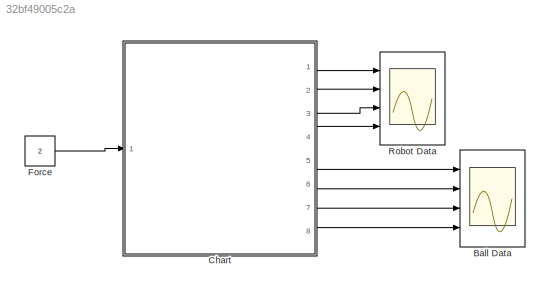
MODEL slx_32bf49005c2a
KIND model
CONFIG AbsTol = auto
CONFIG EnableMultiTasking = off
CONFIG FixedStep = 0.1
CONFIG MaxStep = auto
CONFIG MinStep = auto
CONFIG RelTol = 1e-3
CONFIG SampleTimeConstraint = Unconstrained
CONFIG Solver = FixedStepAuto
CONFIG SolverName = FixedStepAuto
CONFIG StartTime = 0.0
CONFIG StopTime = 10
BLOCK [Scope] Ball Data
  Floating = off
  NumInputPorts = 4
  Ports = [4]
  ScopeSpecificationString = Simulink.scopes.TimeScopeBlockCfg('CurrentConfiguration', extmgr.ConfigurationSet(extmgr.Configuration('Core','General UI',true),extmgr.Configuration('Core','Source UI',true),extmgr.Configuration('Sources','WiredSimulink',true,'DataLoggingVariableName','ScopeData1'),extmgr.Configuration('Visuals','Time Domain',true,'SerializedDisplays',{struct('MinYLimReal','-18.75771','MaxYLimReal','21.66937','YL...<+1494ch>
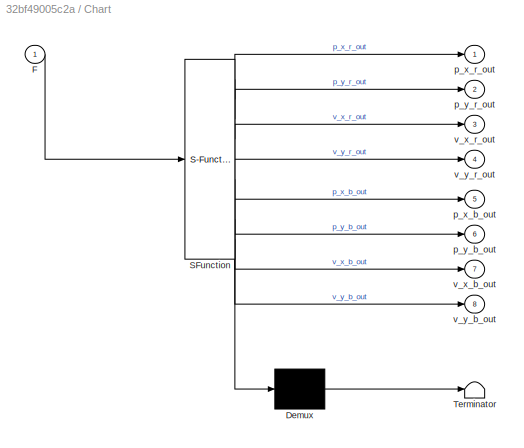
BLOCK [SubSystem] Chart
  ErrorFcn = Stateflow.Translate.translate
  PermitHierarchicalResolution = ExplicitOnly
  Ports = [1, 8]
  RequestExecContextInheritance = off
  SFBlockType = Chart
  TreatAsAtomicUnit = on
BLOCK [Demux] Chart/ Demux 
  Outputs = 1
  Ports = [1, 1]
BLOCK [S-Function] Chart/ SFunction 
  EnableBusSupport = on
  FunctionName = sf_sfun
  PortCounts = [1 9]
  Ports = [1, 9]
  SFcnIsStateOwnerBlock = off
  SFunctionDeploymentMode = off
  Tag = Stateflow S-Function A4a 3
BLOCK [Terminator] Chart/ Terminator 
BLOCK [Inport] Chart/F
  IconDisplay = Port number
BLOCK [Outport] Chart/p_x_b_out
  IconDisplay = Port number
  Port = 5
BLOCK [Outport] Chart/p_x_r_out
  IconDisplay = Port number
BLOCK [Outport] Chart/p_y_b_out
  IconDisplay = Port number
  Port = 6
BLOCK [Outport] Chart/p_y_r_out
  IconDisplay = Port number
  Port = 2
BLOCK [Outport] Chart/v_x_b_out
  IconDisplay = Port number
  Port = 7
BLOCK [Outport] Chart/v_x_r_out
  IconDisplay = Port number
  Port = 3
BLOCK [Outport] Chart/v_y_b_out
  IconDisplay = Port number
  Port = 8
BLOCK [Outport] Chart/v_y_r_out
  IconDisplay = Port number
  Port = 4
BLOCK [Constant] Force
  Value = 2
BLOCK [Scope] Robot Data
  Floating = off
  NumInputPorts = 4
  Ports = [4]
  ScopeSpecificationString = Simulink.scopes.TimeScopeBlockCfg('CurrentConfiguration', extmgr.ConfigurationSet(extmgr.Configuration('Core','General UI',true),extmgr.Configuration('Core','Source UI',true),extmgr.Configuration('Sources','WiredSimulink',true),extmgr.Configuration('Visuals','Time Domain',true,'SerializedDisplays',{struct('MinYLimReal','-20.24854','MaxYLimReal','35.08688','YLabelReal','','MinYLimMag','0.00000','Ma...<+1455ch>
LINE Chart:1 -> Robot Data:1
LINE Chart:2 -> Robot Data:2
LINE Chart:3 -> Robot Data:3
LINE Chart:4 -> Robot Data:4
LINE Chart:5 -> Ball Data:1
LINE Chart:6 -> Ball Data:2
LINE Chart:7 -> Ball Data:3
LINE Chart:8 -> Ball Data:4
LINE Force:1 -> Chart:1
CHART Chart states=4 transitions=4
  STATE_LABEL 'With_Ball\ndu:\n% Robot\np_x_r_dot = v_x_r;\nv_x_r_dot = F / (m_r + m_b);\n% Ball\np_x_b_dot = v_x_b;\nv_x_b_dot = F / (m_r + m_b);\n% Output\np_x_r_out = p_x_r;\np_y_r_out = p_y_r;\nv_x_r_out = v_x_r;\nv_y_r_out = v_y_r;\np_x_b_out = p_x_b;\np_y_b_out = p_y_b;\nv_x_b_out = v_x_b;\nv_y_b_out = v_y_b;'
  STATE_LABEL 'Ground\ndu:\n% Robot\np_x_r_dot = 0;\np_y_r_dot = 0;\nv_x_r_dot = 0;\nv_y_r_dot = 0;\n% Ball\np_x_b_dot = 0;\np_y_b_dot = 0;\nv_x_b_dot = 0;\nv_y_b_dot = 0;\n% Output\np_x_r_out = p_x_r;\np_y_r_out = p_y_r;\nv_x_r_out = v_x_r;\nv_y_r_out = v_y_r;\np_x_b_out = p_x_b;\np_y_b_out = p_y_b;\nv_x_b_out = v_x_b;\nv_y_b_out = v_y_b;'
  STATE_LABEL 'Robot\nen,du:\n% Robot\np_x_r_dot = v_x_r;\np_y_r_dot = 0;\nv_x_r_dot = F / m_r;\nv_y_r_dot = 0;\n% Ball\np_x_b_dot = 0;\np_y_b_dot = 0;\nv_x_b_dot = 0;\nv_y_b_dot = 0;\n% Output\np_x_r_out = p_x_r;\np_y_r_out = p_y_r;\nv_x_r_out = v_x_r;\nv_y_r_out = v_y_r;\np_x_b_out = p_x_b;\np_y_b_out = p_y_b;\nv_x_b_out = v_x_b;\nv_y_b_out = v_y_b;'
  STATE_LABEL 'Falling\nen, du:\n% Robot\np_x_r_dot = v_x_r;\np_y_r_dot = v_y_r;\nv_x_r_dot = 0;\nv_y_r_dot = -g;\n% Ball\np_x_b_dot = v_x_b;\np_y_b_dot = v_y_b;\nv_x_b_dot = 0;\nv_y_b_dot = -g;\n% Output\np_x_r_out = p_x_r;\np_y_r_out = p_y_r;\nv_x_r_out = v_x_r;\nv_y_r_out = v_y_r;\np_x_b_out = p_x_b;\np_y_b_out = p_y_b;\nv_x_b_out = v_x_b;\nv_y_b_out = v_y_b;'
